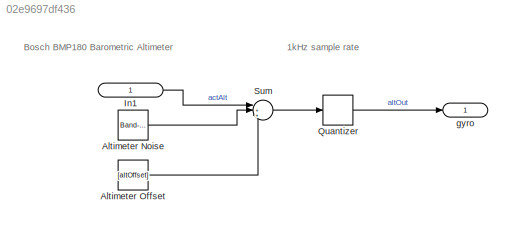
MODEL slx_02e9697df436
KIND model
CONFIG AbsTol = auto
CONFIG FixedStep = auto
CONFIG MaxStep = auto
CONFIG MinStep = auto
CONFIG RelTol = 1e-3
CONFIG SampleTimeConstraint = Unconstrained
CONFIG Solver = ode45
CONFIG SolverMode = Auto
CONFIG SolverName = ode45
CONFIG StartTime = 0.0
CONFIG StopTime = 10
BLOCK [Reference] Altimeter Noise  REF=simulink/Sources/Band-Limited
White Noise
  Cov = [altNoise]
  Ports = [0, 1]
  SourceBlock = simulink/Sources/Band-Limited\nWhite Noise
  SourceType = Band-Limited White Noise.
  Ts = 1/1000
  VectorParams1D = on
  seed = [233419]
BLOCK [Constant] Altimeter Offset
  Value = [altOffset]
BLOCK [Inport] In1
  IconDisplay = Signal name
  SignalType = real
BLOCK [Quantizer] Quantizer
  QuantizationInterval = altSensitivity
BLOCK [Sum] Sum
  IconShape = round
  InputSameDT = off
  Inputs = |+++
  OutDataTypeStr = Inherit: Inherit via internal rule
  Ports = [3, 1]
  SaturateOnIntegerOverflow = off
BLOCK [Outport] gyro
  IconDisplay = Signal name
  OutDataTypeStr = double
  PortDimensions = 1
  SignalType = real
  VarSizeSig = No
ANNOTATION (root): 1kHz sample rate
ANNOTATION (root): Bosch BMP180 Barometric Altimeter
LINE Altimeter Noise:1 -> Sum:2
LINE Altimeter Offset:1 -> Sum:3
LINE In1:1 -> Sum:1
LINE Quantizer:1 -> gyro:1
LINE Sum:1 -> Quantizer:1
